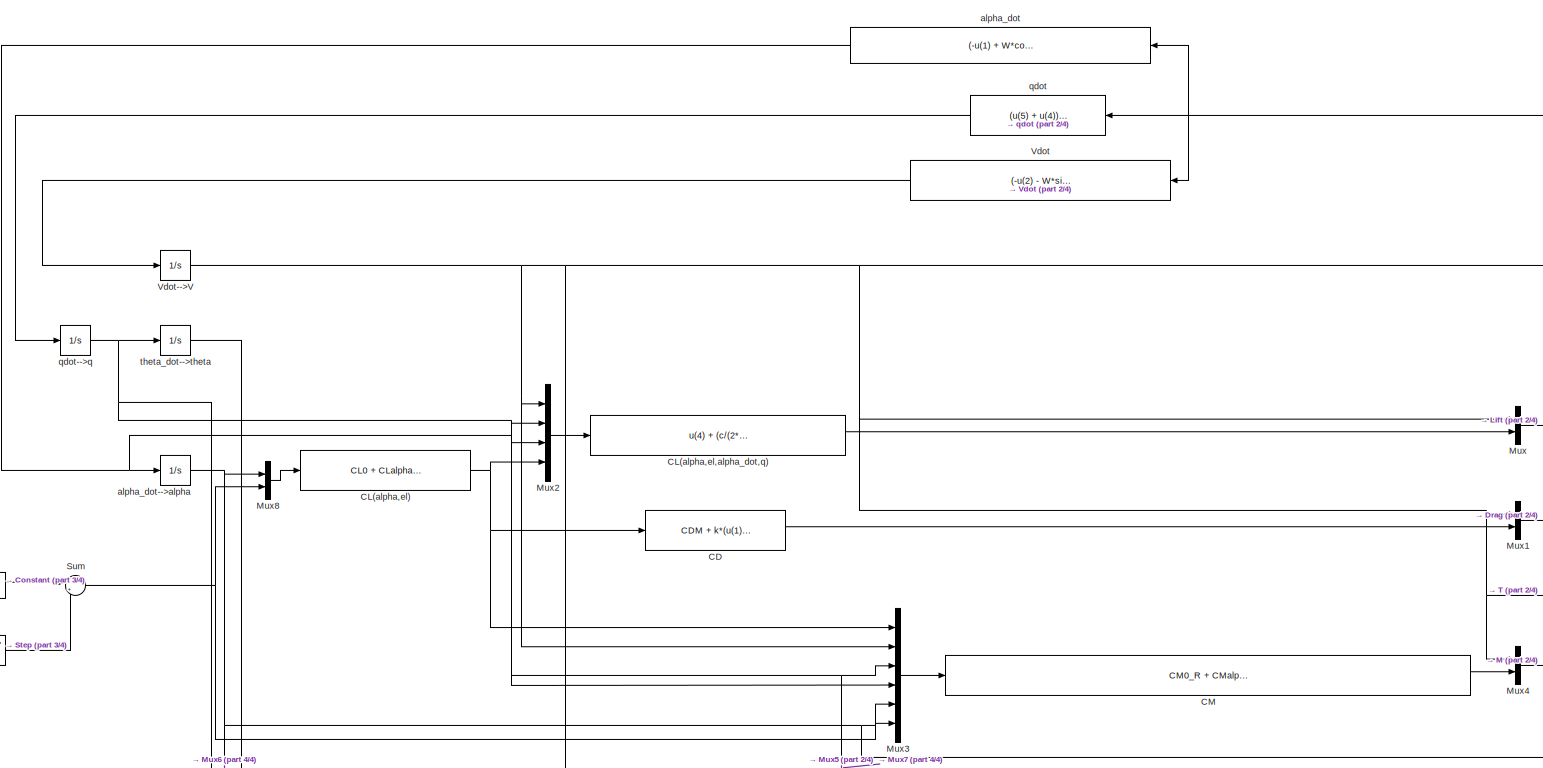
[diagram: root canvas - part 1/4, central region]
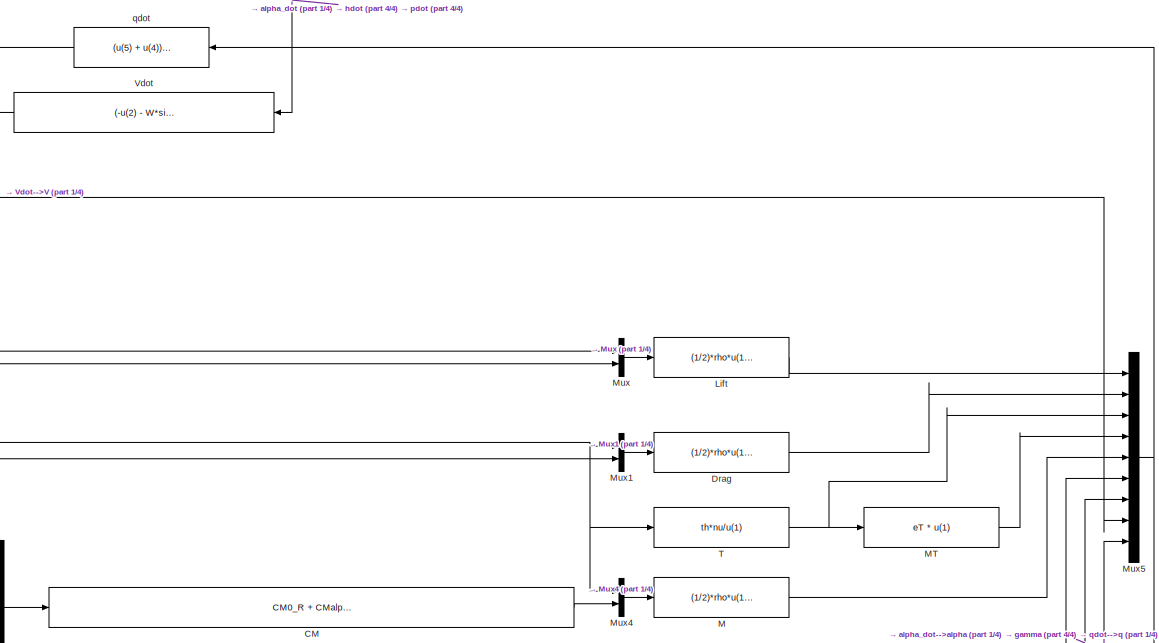
[diagram: root canvas - part 2/4, middle right region]
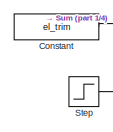
[diagram: root canvas - part 3/4, middle left region]
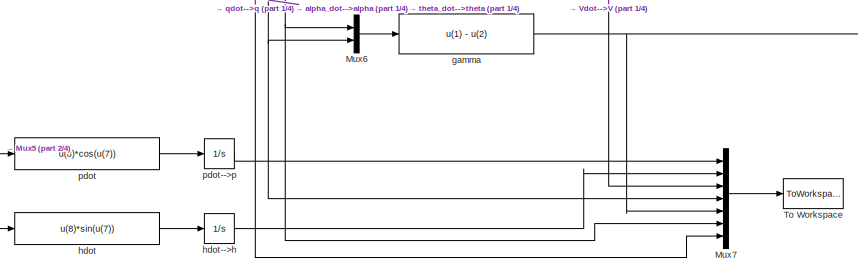
[diagram: root canvas - part 4/4, bottom left region]
MODEL slx_d5341a953d68
KIND model
BLOCK [Fcn] CD
  Expr = CDM + k*(u(1) - CLDM)^2
BLOCK [Fcn] CL(alpha,el)
  Expr = CL0 + CLalpha*u(1) + CLel*u(2)
BLOCK [Fcn] CL(alpha,el,alpha_dot,q)
  Expr = u(4) + (c/(2*u(1)))*(CLalpha_dot*u(3) + CLq*u(2))
BLOCK [Fcn] CM
  Expr = CM0_R + CMalpha_R*u(5) + CMel_R*u(6) + (c/(2*u(2)))*(CMalpha_dot_R*u(4) + CMq_R*u(3)) - u(1)*xcm/c
BLOCK [Constant] Constant
  Value = el_trim
BLOCK [Fcn] Drag
  Expr = (1/2)*rho*u(1)^2*S*u(2)
BLOCK [Fcn] Lift
  Expr = (1/2)*rho*u(1)^2*S*u(2)
BLOCK [Fcn] M
  Expr = (1/2)*rho*u(1)^2*S*c*u(2)
BLOCK [Fcn] MT
  Expr = eT * u(1)
BLOCK [Mux] Mux
  DisplayOption = bar
  Inputs = 2
  Ports = [2, 1]
BLOCK [Mux] Mux1
  DisplayOption = bar
  Inputs = 2
  Ports = [2, 1]
BLOCK [Mux] Mux2
  DisplayOption = bar
  Ports = [4, 1]
BLOCK [Mux] Mux3
  DisplayOption = bar
  Inputs = 6
  Ports = [6, 1]
BLOCK [Mux] Mux4
  DisplayOption = bar
  Inputs = 2
  Ports = [2, 1]
BLOCK [Mux] Mux5
  DisplayOption = bar
  Inputs = 9
  Ports = [9, 1]
BLOCK [Mux] Mux6
  DisplayOption = bar
  Inputs = 2
  Ports = [2, 1]
BLOCK [Mux] Mux7
  DisplayOption = bar
  Inputs = 7
  Ports = [7, 1]
BLOCK [Mux] Mux8
  DisplayOption = bar
  Inputs = 2
  Ports = [2, 1]
BLOCK [Step] Step
  After = del
  SampleTime = 0
  Time = 300
BLOCK [Sum] Sum
  IconShape = round
  InputSameDT = off
  Inputs = |++
  OutDataTypeStr = Inherit: Inherit via internal rule
  Ports = [2, 1]
  SaturateOnIntegerOverflow = off
BLOCK [Fcn] T
  Expr = th*nu/u(1)
BLOCK [ToWorkspace] To Workspace
  MaxDataPoints = inf
  Ports = [1]
  SampleTime = -1
  SaveFormat = Timeseries
  VariableName = simout
BLOCK [Fcn] Vdot
  Expr = (-u(2) - W*sin(u(7)) + u(3)*cos(u(6) - e))/m
BLOCK [Integrator] Vdot-->V
  InitialCondition = V0
  Ports = [1, 1]
BLOCK [Fcn] alpha_dot
  Expr = (-u(1) + W*cos(u(7)) - u(3)*sin(u(6) - e) + m*u(8)*u(9))/(m*u(8))
BLOCK [Integrator] alpha_dot-->alpha
  InitialCondition = alpha0
  Ports = [1, 1]
BLOCK [Fcn] gamma
  Expr = u(1) - u(2)
BLOCK [Fcn] hdot
  Expr = u(8)*sin(u(7))
BLOCK [Integrator] hdot-->h
  InitialCondition = h0
  Ports = [1, 1]
BLOCK [Fcn] pdot
  Expr = u(8)*cos(u(7))
BLOCK [Integrator] pdot-->p
  InitialCondition = p0
  Ports = [1, 1]
BLOCK [Fcn] qdot
  Expr = (u(5) + u(4))/J2
BLOCK [Integrator] qdot-->q
  InitialCondition = q0
  Ports = [1, 1]
BLOCK [Integrator] theta_dot-->theta
  InitialCondition = theta0
  Ports = [1, 1]
LINE CD:1 -> Mux1:2
NET CL(alpha,el):1 -> CD:1, Mux2:4, Mux3:1
LINE CL(alpha,el,alpha_dot,q):1 -> Mux:2
LINE CM:1 -> Mux4:2
LINE Constant:1 -> Sum:1
LINE Drag:1 -> Mux5:2
LINE Lift:1 -> Mux5:1
LINE M:1 -> Mux5:5
LINE MT:1 -> Mux5:4
LINE Mux1:1 -> Drag:1
LINE Mux2:1 -> CL(alpha,el,alpha_dot,q):1
LINE Mux3:1 -> CM:1
LINE Mux4:1 -> M:1
NET Mux5:1 -> Vdot:1, alpha_dot:1, hdot:1, pdot:1, qdot:1
LINE Mux6:1 -> gamma:1
LINE Mux7:1 -> To Workspace:1
LINE Mux8:1 -> CL(alpha,el):1
LINE Mux:1 -> Lift:1
LINE Step:1 -> Sum:2
NET Sum:1 -> Mux3:6, Mux8:2
NET T:1 -> MT:1, Mux5:3
NET Vdot-->V:1 -> Mux1:1, Mux2:1, Mux3:2, Mux4:1, Mux5:8, Mux7:3, Mux:1, T:1
LINE Vdot:1 -> Vdot-->V:1
NET alpha_dot-->alpha:1 -> Mux3:5, Mux5:6, Mux6:2, Mux7:4, Mux8:1
NET alpha_dot:1 -> Mux2:3, Mux3:4, alpha_dot-->alpha:1
NET gamma:1 -> Mux5:7, Mux7:5
LINE hdot-->h:1 -> Mux7:2
LINE hdot:1 -> hdot-->h:1
LINE pdot-->p:1 -> Mux7:1
LINE pdot:1 -> pdot-->p:1
NET qdot-->q:1 -> Mux2:2, Mux3:3, Mux5:9, Mux7:7, theta_dot-->theta:1
LINE qdot:1 -> qdot-->q:1
NET theta_dot-->theta:1 -> Mux6:1, Mux7:6
note: NET lines group one-source signal fan-out (src -> all destinations, sorted); 1:1 wires keep LINE
